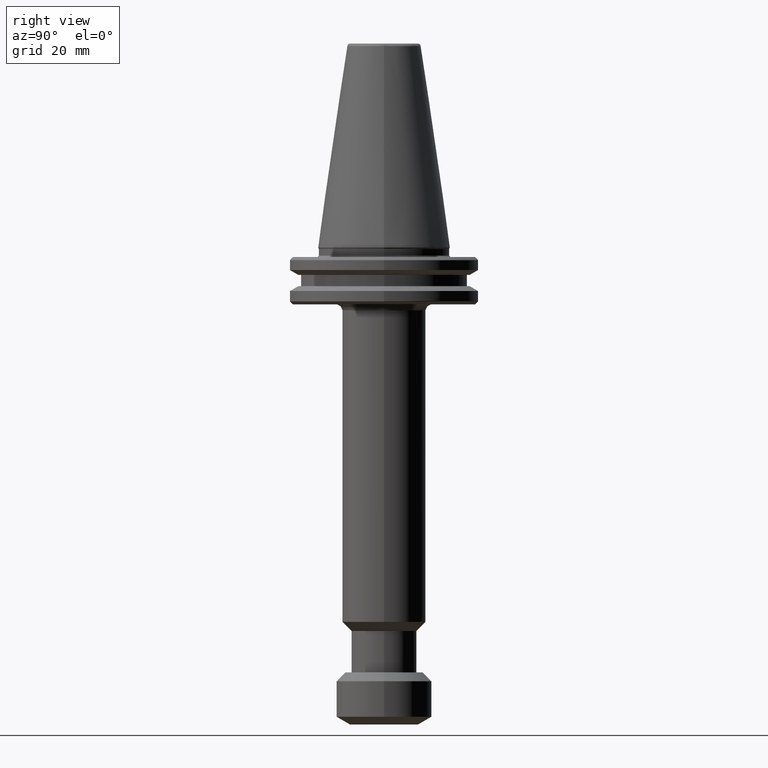
[diagram: clean part render]
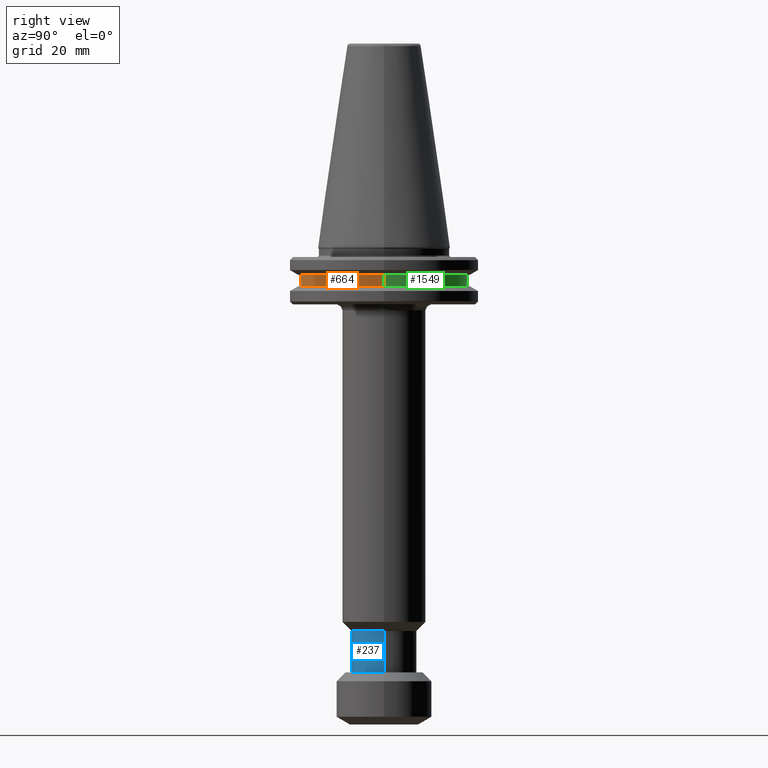
[diagram: same view with three faces highlighted in distinct colors, each labeled with its STEP entity id]
A machine part, right view with three faces highlighted in distinct colors.
Their STEP definitions:

[orange] entity #664 — the highlighted cylindrical surface (partial cylindrical patch) has radius 28.02 mm, axis along (-0, -0, 1).
#12 = EDGE_CURVE ( 'NONE', #142, #834, #208, .T. ) ;
#50 = ORIENTED_EDGE ( 'NONE', *, *, #12, .T. ) ;
#84 = EDGE_CURVE ( 'NONE', #142, #793, #1166, .T. ) ;
#142 = VERTEX_POINT ( 'NONE', #421 ) ;
#164 = CARTESIAN_POINT ( 'NONE',  ( -28.01999999999999600, 3.431460331210883200E-015, -9.210000003600004700 ) ) ;
#168 = DIRECTION ( 'NONE',  ( 1.000000000000000000, 0.0000000000000000000, 0.0000000000000000000 ) ) ;
#184 = CARTESIAN_POINT ( 'NONE',  ( 28.01999999999999600, 0.0000000000000000000, 15.73615212341877100 ) ) ;
#208 = CIRCLE ( 'NONE', #943, 28.01999999999999600 ) ;
#226 = FACE_OUTER_BOUND ( 'NONE', #1210, .T. ) ;
#274 = VECTOR ( 'NONE', #531, 1000.000000000000000 ) ;
#288 = CARTESIAN_POINT ( 'NONE',  ( -28.01999999999999600, 3.431460331210883200E-015, 15.73615212341877100 ) ) ;
#290 = CIRCLE ( 'NONE', #633, 28.01999999999999600 ) ;
#339 = VERTEX_POINT ( 'NONE', #1109 ) ;
#421 = CARTESIAN_POINT ( 'NONE',  ( -28.01999999999999600, 3.431460331210883200E-015, -12.98999999602402500 ) ) ;
#447 = DIRECTION ( 'NONE',  ( 1.000000000000000000, 0.0000000000000000000, 0.0000000000000000000 ) ) ;
#521 = DIRECTION ( 'NONE',  ( -0.0000000000000000000, -0.0000000000000000000, 1.000000000000000000 ) ) ;
#531 = DIRECTION ( 'NONE',  ( -0.0000000000000000000, -0.0000000000000000000, 1.000000000000000000 ) ) ;
#545 = DIRECTION ( 'NONE',  ( -0.0000000000000000000, -0.0000000000000000000, 1.000000000000000000 ) ) ;
#597 = AXIS2_PLACEMENT_3D ( 'NONE', #1034, #602, #447 ) ;
#602 = DIRECTION ( 'NONE',  ( -0.0000000000000000000, -0.0000000000000000000, 1.000000000000000000 ) ) ;
#613 = CYLINDRICAL_SURFACE ( 'NONE', #597, 28.01999999999999600 ) ;
#633 = AXIS2_PLACEMENT_3D ( 'NONE', #1535, #1506, #729 ) ;
#638 = ORIENTED_EDGE ( 'NONE', *, *, #84, .F. ) ;
#664 = ADVANCED_FACE ( 'NONE', ( #226 ), #613, .T. ) ;
#729 = DIRECTION ( 'NONE',  ( 1.000000000000000000, 0.0000000000000000000, 0.0000000000000000000 ) ) ;
#788 = CARTESIAN_POINT ( 'NONE',  ( 0.0000000000000000000, 0.0000000000000000000, -12.98999999602402500 ) ) ;
#793 = VERTEX_POINT ( 'NONE', #164 ) ;
#834 = VERTEX_POINT ( 'NONE', #1205 ) ;
#939 = ORIENTED_EDGE ( 'NONE', *, *, #1041, .F. ) ;
#943 = AXIS2_PLACEMENT_3D ( 'NONE', #788, #545, #168 ) ;
#1034 = CARTESIAN_POINT ( 'NONE',  ( 0.0000000000000000000, 0.0000000000000000000, 15.73615212341877100 ) ) ;
#1037 = ORIENTED_EDGE ( 'NONE', *, *, #1100, .T. ) ;
#1041 = EDGE_CURVE ( 'NONE', #793, #339, #290, .T. ) ;
#1100 = EDGE_CURVE ( 'NONE', #834, #339, #1324, .T. ) ;
#1109 = CARTESIAN_POINT ( 'NONE',  ( 28.01999999999999600, 0.0000000000000000000, -9.210000003600004700 ) ) ;
#1166 = LINE ( 'NONE', #288, #1509 ) ;
#1205 = CARTESIAN_POINT ( 'NONE',  ( 28.01999999999999600, 0.0000000000000000000, -12.98999999602402500 ) ) ;
#1210 = EDGE_LOOP ( 'NONE', ( #638, #50, #1037, #939 ) ) ;
#1324 = LINE ( 'NONE', #184, #274 ) ;
#1506 = DIRECTION ( 'NONE',  ( -0.0000000000000000000, -0.0000000000000000000, 1.000000000000000000 ) ) ;
#1509 = VECTOR ( 'NONE', #521, 1000.000000000000000 ) ;
#1535 = CARTESIAN_POINT ( 'NONE',  ( 0.0000000000000000000, 0.0000000000000000000, -9.210000003600004700 ) ) ;

[blue] entity #237 — the highlighted cylindrical surface (edge-blend (fillet) strip) has radius 10.95 mm, axis along (0, 0, 1).
#10 = CYLINDRICAL_SURFACE ( 'NONE', #988, 10.95000000000000100 ) ;
#14 = VERTEX_POINT ( 'NONE', #921 ) ;
#41 = VERTEX_POINT ( 'NONE', #1469 ) ;
#54 = DIRECTION ( 'NONE',  ( 1.000000000000000000, 0.0000000000000000000, 0.0000000000000000000 ) ) ;
#149 = DIRECTION ( 'NONE',  ( 0.0000000000000000000, 0.0000000000000000000, 1.000000000000000000 ) ) ;
#181 = CARTESIAN_POINT ( 'NONE',  ( 0.0000000000000000000, 0.0000000000000000000, -142.5000000000000600 ) ) ;
#237 = ADVANCED_FACE ( 'NONE', ( #280 ), #10, .T. ) ;
#255 = EDGE_CURVE ( 'NONE', #14, #869, #1306, .T. ) ;
#280 = FACE_OUTER_BOUND ( 'NONE', #1064, .T. ) ;
#298 = DIRECTION ( 'NONE',  ( 0.0000000000000000000, 0.0000000000000000000, 1.000000000000000000 ) ) ;
#519 = CARTESIAN_POINT ( 'NONE',  ( 0.0000000000000000000, 0.0000000000000000000, -142.5000000000000600 ) ) ;
#593 = LINE ( 'NONE', #1501, #930 ) ;
#627 = DIRECTION ( 'NONE',  ( 0.0000000000000000000, 0.0000000000000000000, 1.000000000000000000 ) ) ;
#703 = CARTESIAN_POINT ( 'NONE',  ( 10.94999999999996900, 0.0000000000000000000, -128.6300000000000000 ) ) ;
#736 = ORIENTED_EDGE ( 'NONE', *, *, #1550, .T. ) ;
#820 = LINE ( 'NONE', #1202, #1137 ) ;
#864 = ORIENTED_EDGE ( 'NONE', *, *, #1497, .T. ) ;
#869 = VERTEX_POINT ( 'NONE', #703 ) ;
#872 = DIRECTION ( 'NONE',  ( 1.000000000000000000, 0.0000000000000000000, 0.0000000000000000000 ) ) ;
#907 = AXIS2_PLACEMENT_3D ( 'NONE', #1394, #1523, #1265 ) ;
#921 = CARTESIAN_POINT ( 'NONE',  ( -10.94999999999997100, 1.340988245066350300E-015, -128.6300000000000200 ) ) ;
#930 = VECTOR ( 'NONE', #1230, 1000.000000000000000 ) ;
#980 = ORIENTED_EDGE ( 'NONE', *, *, #1293, .F. ) ;
#988 = AXIS2_PLACEMENT_3D ( 'NONE', #519, #627, #54 ) ;
#1064 = EDGE_LOOP ( 'NONE', ( #980, #864, #736, #1439 ) ) ;
#1137 = VECTOR ( 'NONE', #149, 1000.000000000000000 ) ;
#1178 = CIRCLE ( 'NONE', #1239, 10.95000000000000100 ) ;
#1189 = CARTESIAN_POINT ( 'NONE',  ( 10.95000000000000100, 0.0000000000000000000, -142.5000000000000600 ) ) ;
#1202 = CARTESIAN_POINT ( 'NONE',  ( 10.95000000000000100, 0.0000000000000000000, -142.5000000000000600 ) ) ;
#1230 = DIRECTION ( 'NONE',  ( 0.0000000000000000000, 0.0000000000000000000, 1.000000000000000000 ) ) ;
#1239 = AXIS2_PLACEMENT_3D ( 'NONE', #181, #298, #872 ) ;
#1265 = DIRECTION ( 'NONE',  ( 1.000000000000000000, 0.0000000000000000000, 2.534755763984382800E-015 ) ) ;
#1293 = EDGE_CURVE ( 'NONE', #41, #14, #593, .T. ) ;
#1306 = CIRCLE ( 'NONE', #907, 10.94999999999996900 ) ;
#1394 = CARTESIAN_POINT ( 'NONE',  ( 2.927413515468598500E-029, 0.0000000000000000000, -128.6300000000000200 ) ) ;
#1439 = ORIENTED_EDGE ( 'NONE', *, *, #255, .F. ) ;
#1469 = CARTESIAN_POINT ( 'NONE',  ( -10.95000000000000100, 1.340988245066351900E-015, -142.5000000000000600 ) ) ;
#1497 = EDGE_CURVE ( 'NONE', #41, #1515, #1178, .T. ) ;
#1501 = CARTESIAN_POINT ( 'NONE',  ( -10.95000000000000100, 1.340988245066351900E-015, -142.5000000000000600 ) ) ;
#1515 = VERTEX_POINT ( 'NONE', #1189 ) ;
#1523 = DIRECTION ( 'NONE',  ( -1.267377881992187800E-015, 0.0000000000000000000, 1.000000000000000000 ) ) ;
#1550 = EDGE_CURVE ( 'NONE', #1515, #869, #820, .T. ) ;

[green] entity #1549 — the highlighted cylindrical surface (partial cylindrical patch) has radius 28.02 mm, axis along (-0, -0, 1).
#47 = DIRECTION ( 'NONE',  ( 1.000000000000000000, 0.0000000000000000000, 0.0000000000000000000 ) ) ;
#84 = EDGE_CURVE ( 'NONE', #142, #793, #1166, .T. ) ;
#95 = AXIS2_PLACEMENT_3D ( 'NONE', #933, #1331, #1172 ) ;
#105 = ORIENTED_EDGE ( 'NONE', *, *, #695, .F. ) ;
#142 = VERTEX_POINT ( 'NONE', #421 ) ;
#146 = DIRECTION ( 'NONE',  ( -0.0000000000000000000, -0.0000000000000000000, 1.000000000000000000 ) ) ;
#164 = CARTESIAN_POINT ( 'NONE',  ( -28.01999999999999600, 3.431460331210883200E-015, -9.210000003600004700 ) ) ;
#184 = CARTESIAN_POINT ( 'NONE',  ( 28.01999999999999600, 0.0000000000000000000, 15.73615212341877100 ) ) ;
#202 = ORIENTED_EDGE ( 'NONE', *, *, #84, .T. ) ;
#257 = CIRCLE ( 'NONE', #1123, 28.01999999999999600 ) ;
#274 = VECTOR ( 'NONE', #531, 1000.000000000000000 ) ;
#288 = CARTESIAN_POINT ( 'NONE',  ( -28.01999999999999600, 3.431460331210883200E-015, 15.73615212341877100 ) ) ;
#339 = VERTEX_POINT ( 'NONE', #1109 ) ;
#370 = AXIS2_PLACEMENT_3D ( 'NONE', #467, #146, #47 ) ;
#421 = CARTESIAN_POINT ( 'NONE',  ( -28.01999999999999600, 3.431460331210883200E-015, -12.98999999602402500 ) ) ;
#467 = CARTESIAN_POINT ( 'NONE',  ( 0.0000000000000000000, 0.0000000000000000000, -9.210000003600004700 ) ) ;
#521 = DIRECTION ( 'NONE',  ( -0.0000000000000000000, -0.0000000000000000000, 1.000000000000000000 ) ) ;
#531 = DIRECTION ( 'NONE',  ( -0.0000000000000000000, -0.0000000000000000000, 1.000000000000000000 ) ) ;
#536 = CYLINDRICAL_SURFACE ( 'NONE', #95, 28.01999999999999600 ) ;
#695 = EDGE_CURVE ( 'NONE', #339, #793, #1406, .T. ) ;
#728 = EDGE_LOOP ( 'NONE', ( #1216, #202, #105, #1516 ) ) ;
#793 = VERTEX_POINT ( 'NONE', #164 ) ;
#834 = VERTEX_POINT ( 'NONE', #1205 ) ;
#910 = CARTESIAN_POINT ( 'NONE',  ( 0.0000000000000000000, 0.0000000000000000000, -12.98999999602402500 ) ) ;
#933 = CARTESIAN_POINT ( 'NONE',  ( 0.0000000000000000000, 0.0000000000000000000, 15.73615212341877100 ) ) ;
#1100 = EDGE_CURVE ( 'NONE', #834, #339, #1324, .T. ) ;
#1109 = CARTESIAN_POINT ( 'NONE',  ( 28.01999999999999600, 0.0000000000000000000, -9.210000003600004700 ) ) ;
#1123 = AXIS2_PLACEMENT_3D ( 'NONE', #910, #1157, #1370 ) ;
#1133 = EDGE_CURVE ( 'NONE', #834, #142, #257, .T. ) ;
#1157 = DIRECTION ( 'NONE',  ( -0.0000000000000000000, -0.0000000000000000000, 1.000000000000000000 ) ) ;
#1166 = LINE ( 'NONE', #288, #1509 ) ;
#1172 = DIRECTION ( 'NONE',  ( 1.000000000000000000, 0.0000000000000000000, 0.0000000000000000000 ) ) ;
#1205 = CARTESIAN_POINT ( 'NONE',  ( 28.01999999999999600, 0.0000000000000000000, -12.98999999602402500 ) ) ;
#1216 = ORIENTED_EDGE ( 'NONE', *, *, #1133, .T. ) ;
#1324 = LINE ( 'NONE', #184, #274 ) ;
#1331 = DIRECTION ( 'NONE',  ( -0.0000000000000000000, -0.0000000000000000000, 1.000000000000000000 ) ) ;
#1370 = DIRECTION ( 'NONE',  ( 1.000000000000000000, 0.0000000000000000000, 0.0000000000000000000 ) ) ;
#1406 = CIRCLE ( 'NONE', #370, 28.01999999999999600 ) ;
#1509 = VECTOR ( 'NONE', #521, 1000.000000000000000 ) ;
#1516 = ORIENTED_EDGE ( 'NONE', *, *, #1100, .F. ) ;
#1524 = FACE_OUTER_BOUND ( 'NONE', #728, .T. ) ;
#1549 = ADVANCED_FACE ( 'NONE', ( #1524 ), #536, .T. ) ;